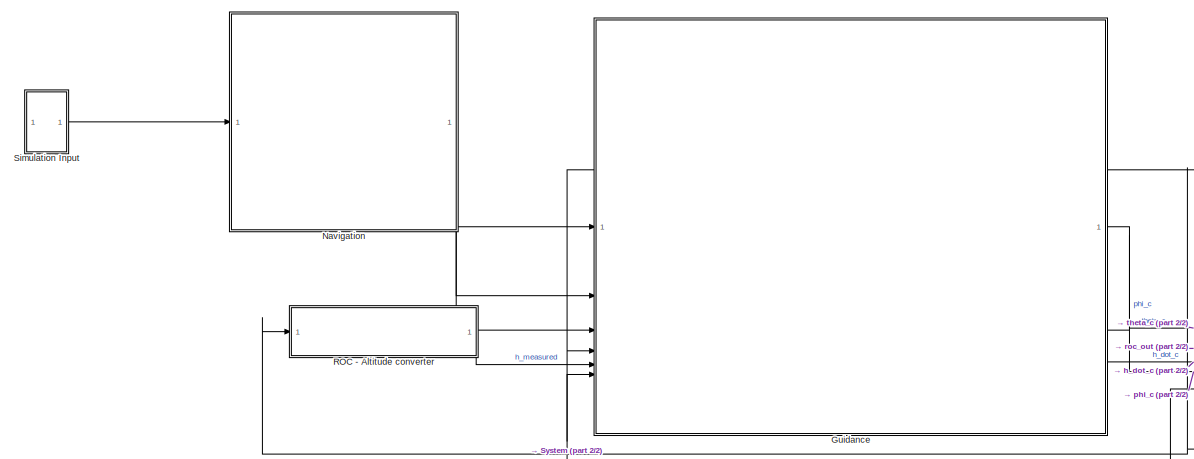
[diagram: root canvas - part 1/2, middle left region]
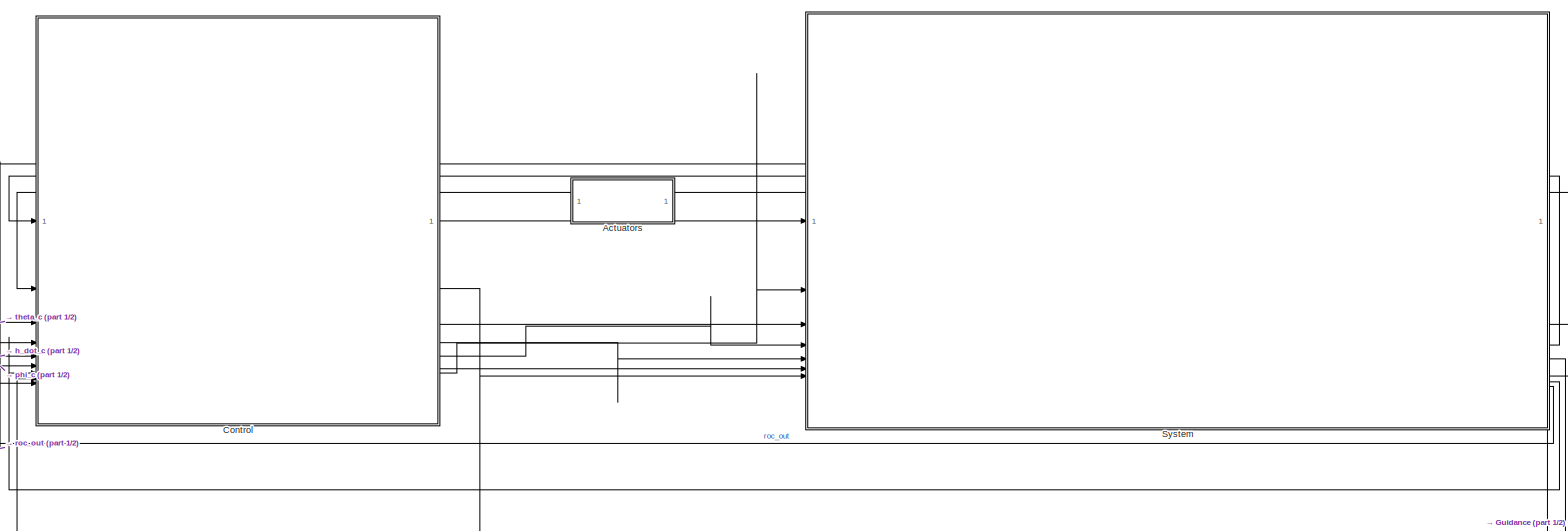
[diagram: root canvas - part 2/2, right side, full height]
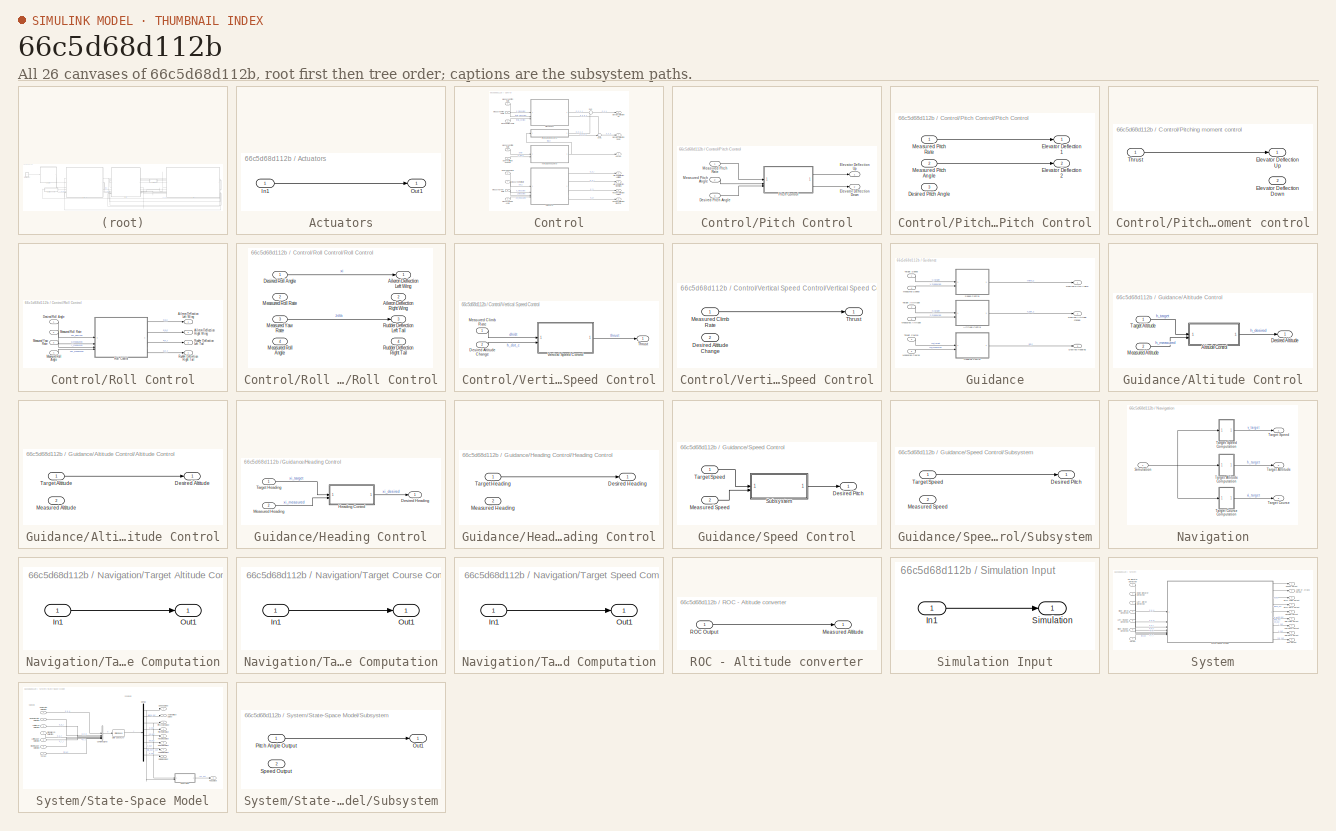
[diagram: thumbnail index - all 26 canvases of the model, root first then tree order]
MODEL slx_66c5d68d112b
KIND model
CONFIG AbsTol = auto
CONFIG EnableMultiTasking = off
CONFIG FixedStep = auto
CONFIG MaxStep = auto
CONFIG MinStep = auto
CONFIG RelTol = 1e-3
CONFIG SampleTimeConstraint = Unconstrained
CONFIG SolverName = VariableStepAuto
CONFIG StartTime = 0.0
CONFIG StopTime = 10.0
BLOCK [SubSystem] Actuators
BLOCK [Inport] Actuators/In1
BLOCK [Outport] Actuators/Out1
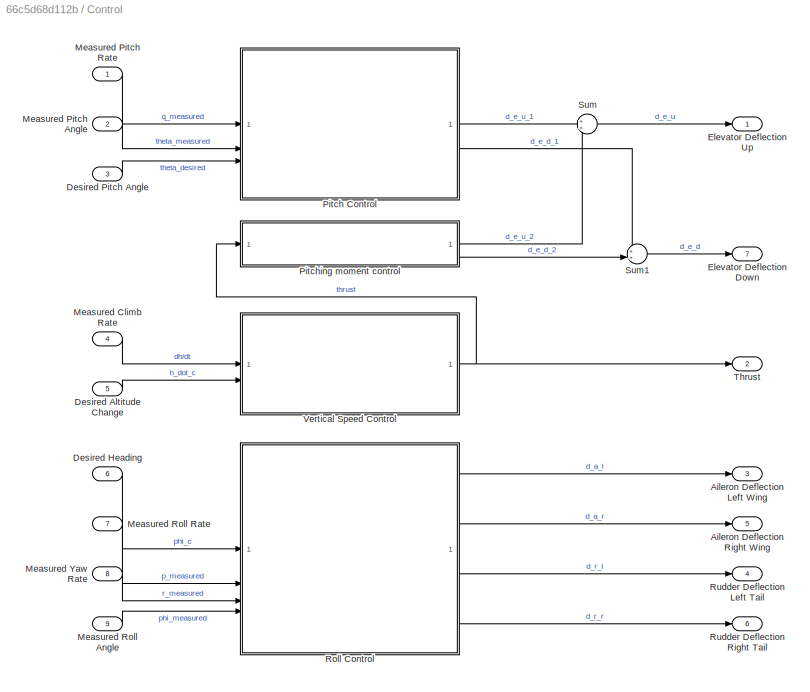
BLOCK [SubSystem] Control
BLOCK [Outport] Control/Aileron Deflection Left Wing
  Port = 3
BLOCK [Outport] Control/Aileron Deflection Right Wing
  Port = 5
BLOCK [Inport] Control/Desired Altitude Change
  Port = 5
BLOCK [Inport] Control/Desired Heading
  Port = 6
BLOCK [Inport] Control/Desired Pitch Angle
  Port = 3
BLOCK [Outport] Control/Elevator Deflection Down
  Port = 7
BLOCK [Outport] Control/Elevator Deflection Up
BLOCK [Inport] Control/Measured Climb Rate
  Port = 4
BLOCK [Inport] Control/Measured Pitch Angle
  Port = 2
BLOCK [Inport] Control/Measured Pitch Rate
BLOCK [Inport] Control/Measured Roll Angle
  Port = 9
BLOCK [Inport] Control/Measured Roll Rate
  Port = 7
BLOCK [Inport] Control/Measured Yaw Rate
  Port = 8
BLOCK [SubSystem] Control/Pitch Control
BLOCK [Inport] Control/Pitch Control/Desired Pitch Angle
  Port = 3
BLOCK [Outport] Control/Pitch Control/Elevator Deflection Down
  Port = 2
BLOCK [Outport] Control/Pitch Control/Elevator Deflection Up
BLOCK [Inport] Control/Pitch Control/Measured Pitch Angle
  Port = 2
BLOCK [Inport] Control/Pitch Control/Measured Pitch Rate
BLOCK [SubSystem] Control/Pitch Control/Pitch Control
BLOCK [Inport] Control/Pitch Control/Pitch Control/Desired Pitch Angle
  Port = 3
BLOCK [Outport] Control/Pitch Control/Pitch Control/Elevator Deflection 1
BLOCK [Outport] Control/Pitch Control/Pitch Control/Elevator Deflection 2
  Port = 2
BLOCK [Inport] Control/Pitch Control/Pitch Control/Measured Pitch Angle
  Port = 2
BLOCK [Inport] Control/Pitch Control/Pitch Control/Measured Pitch Rate
BLOCK [SubSystem] Control/Pitching moment control
BLOCK [Outport] Control/Pitching moment control/Elevator Deflection Down
  Port = 2
BLOCK [Outport] Control/Pitching moment control/Elevator Deflection Up
BLOCK [Inport] Control/Pitching moment control/Thrust
BLOCK [SubSystem] Control/Roll Control
BLOCK [Outport] Control/Roll Control/Aileron Deflection Left Wing
BLOCK [Outport] Control/Roll Control/Aileron Deflection Right Wing
  Port = 2
BLOCK [Inport] Control/Roll Control/Desired Roll Angle 
BLOCK [Inport] Control/Roll Control/Measured Roll Angle
  Port = 4
BLOCK [Inport] Control/Roll Control/Measured Roll Rate
  Port = 2
BLOCK [Inport] Control/Roll Control/Measured Yaw Rate
  Port = 3
BLOCK [SubSystem] Control/Roll Control/Roll Control
BLOCK [Outport] Control/Roll Control/Roll Control/Aileron Deflection Left Wing
BLOCK [Outport] Control/Roll Control/Roll Control/Aileron Deflection Right Wing
  Port = 2
BLOCK [Inport] Control/Roll Control/Roll Control/Desired Roll Angle
BLOCK [Inport] Control/Roll Control/Roll Control/Measured Roll Angle
  Port = 4
BLOCK [Inport] Control/Roll Control/Roll Control/Measured Roll Rate
  Port = 2
BLOCK [Inport] Control/Roll Control/Roll Control/Measured Yaw Rate
  Port = 3
BLOCK [Outport] Control/Roll Control/Roll Control/Rudder Deflection Left Tail
  Port = 3
BLOCK [Outport] Control/Roll Control/Roll Control/Rudder Deflection Right Tail
  Port = 4
BLOCK [Outport] Control/Roll Control/Rudder Deflection Left Tail
  Port = 3
BLOCK [Outport] Control/Roll Control/Rudder Deflection Right Tail
  Port = 4
BLOCK [Outport] Control/Rudder Deflection Left Tail
  Port = 4
BLOCK [Outport] Control/Rudder Deflection Right Tail
  Port = 6
BLOCK [Sum] Control/Sum
BLOCK [Sum] Control/Sum1
  Inputs = ++|
BLOCK [Outport] Control/Thrust
  Port = 2
BLOCK [SubSystem] Control/Vertical Speed Control
BLOCK [Inport] Control/Vertical Speed Control/Desired Altitude Change
  Port = 2
BLOCK [Inport] Control/Vertical Speed Control/Measured Climb Rate
BLOCK [Outport] Control/Vertical Speed Control/Thrust
BLOCK [SubSystem] Control/Vertical Speed Control/Vertical Speed Control
BLOCK [Inport] Control/Vertical Speed Control/Vertical Speed Control/Desired Altitude Change
  Port = 2
BLOCK [Inport] Control/Vertical Speed Control/Vertical Speed Control/Measured Climb Rate
BLOCK [Outport] Control/Vertical Speed Control/Vertical Speed Control/Thrust
BLOCK [SubSystem] Guidance
BLOCK [SubSystem] Guidance/Altitude Control
BLOCK [SubSystem] Guidance/Altitude Control/Altitude Control
BLOCK [Outport] Guidance/Altitude Control/Altitude Control/Desired Altitude
BLOCK [Inport] Guidance/Altitude Control/Altitude Control/Measured Altitude
  Port = 2
BLOCK [Inport] Guidance/Altitude Control/Altitude Control/Target Altitude
BLOCK [Outport] Guidance/Altitude Control/Desired Altitude
BLOCK [Inport] Guidance/Altitude Control/Measured Altitude
  Port = 2
BLOCK [Inport] Guidance/Altitude Control/Target Altitude
BLOCK [Outport] Guidance/Desired Altitude change
  Port = 2
BLOCK [Outport] Guidance/Desired Heading
  Port = 3
BLOCK [Outport] Guidance/Desired Pitch Angle
BLOCK [SubSystem] Guidance/Heading Control
BLOCK [Outport] Guidance/Heading Control/Desired Heading
BLOCK [SubSystem] Guidance/Heading Control/Heading Control
BLOCK [Outport] Guidance/Heading Control/Heading Control/Desired Heading
BLOCK [Inport] Guidance/Heading Control/Heading Control/Measured Heading
  Port = 2
BLOCK [Inport] Guidance/Heading Control/Heading Control/Target Heading
BLOCK [Inport] Guidance/Heading Control/Measured Heading
  Port = 2
BLOCK [Inport] Guidance/Heading Control/Target Heading
BLOCK [Inport] Guidance/Measured Altitude
  Port = 5
BLOCK [Inport] Guidance/Measured Course
  Port = 6
BLOCK [Inport] Guidance/Measured Speed
  Port = 4
BLOCK [SubSystem] Guidance/Speed Control
BLOCK [Outport] Guidance/Speed Control/Desired Pitch
BLOCK [Inport] Guidance/Speed Control/Measured Speed
  Port = 2
BLOCK [SubSystem] Guidance/Speed Control/Subsystem
BLOCK [Outport] Guidance/Speed Control/Subsystem/Desired Pitch
BLOCK [Inport] Guidance/Speed Control/Subsystem/Measured Speed
  Port = 2
BLOCK [Inport] Guidance/Speed Control/Subsystem/Target Speed
BLOCK [Inport] Guidance/Speed Control/Target Speed
BLOCK [Inport] Guidance/Target Atltitude
  Port = 2
BLOCK [Inport] Guidance/Target Course
  Port = 3
BLOCK [Inport] Guidance/Target Speed
BLOCK [SubSystem] Navigation
BLOCK [Inport] Navigation/Simulation
BLOCK [SubSystem] Navigation/Target Altitude Computation
BLOCK [Inport] Navigation/Target Altitude Computation/In1
BLOCK [Outport] Navigation/Target Altitude Computation/Out1
BLOCK [Outport] Navigation/Target Atltitude
  Port = 2
BLOCK [Outport] Navigation/Target Course
  Port = 3
BLOCK [SubSystem] Navigation/Target Course Computation
BLOCK [Inport] Navigation/Target Course Computation/In1
BLOCK [Outport] Navigation/Target Course Computation/Out1
BLOCK [Outport] Navigation/Target Speed
BLOCK [SubSystem] Navigation/Target Speed Computation
BLOCK [Inport] Navigation/Target Speed Computation/In1
BLOCK [Outport] Navigation/Target Speed Computation/Out1
BLOCK [SubSystem] ROC - Altitude converter
BLOCK [Outport] ROC - Altitude converter/Measured Altitude
BLOCK [Inport] ROC - Altitude converter/ROC Output
BLOCK [SubSystem] Simulation Input
BLOCK [Inport] Simulation Input/In1
BLOCK [Outport] Simulation Input/Simulation
BLOCK [SubSystem] System
BLOCK [Outport] System/Angle of Attack Output
  Port = 2
BLOCK [Inport] System/Down Elevator Deflection
  Port = 2
BLOCK [Outport] System/Heading Output
  Port = 5
BLOCK [Inport] System/Left Aileron Deflection
  Port = 3
BLOCK [Inport] System/Left Rudder Deflection
  Port = 5
BLOCK [Outport] System/Pitch Angle Output
  Port = 3
BLOCK [Outport] System/Pitch Rate Output
  Port = 4
BLOCK [Outport] System/ROC Output
  Port = 9
BLOCK [Inport] System/Right Aileron Deflection
  Port = 4
BLOCK [Inport] System/Right Rudder Deflection
  Port = 6
BLOCK [Outport] System/Roll Angle Output
  Port = 6
BLOCK [Outport] System/Roll Rate Output
  Port = 8
BLOCK [Outport] System/Speed Output
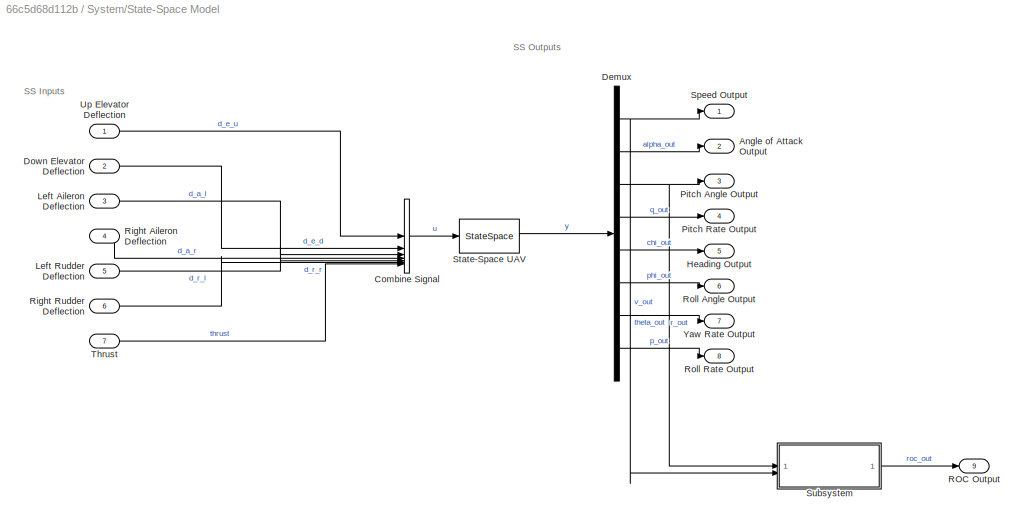
BLOCK [SubSystem] System/State-Space Model
BLOCK [Outport] System/State-Space Model/Angle of Attack Output
  Port = 2
BLOCK [Concatenate] System/State-Space Model/Combine Signal
  NumInputs = 7
BLOCK [Demux] System/State-Space Model/Demux
  Outputs = 8
BLOCK [Inport] System/State-Space Model/Down Elevator Deflection
  Port = 2
BLOCK [Outport] System/State-Space Model/Heading Output
  Port = 5
BLOCK [Inport] System/State-Space Model/Left Aileron Deflection
  Port = 3
BLOCK [Inport] System/State-Space Model/Left Rudder Deflection
  Port = 5
BLOCK [Outport] System/State-Space Model/Pitch Angle Output
  Port = 3
BLOCK [Outport] System/State-Space Model/Pitch Rate Output
  Port = 4
BLOCK [Outport] System/State-Space Model/ROC Output
  Port = 9
BLOCK [Inport] System/State-Space Model/Right Aileron Deflection
  Port = 4
BLOCK [Inport] System/State-Space Model/Right Rudder Deflection
  Port = 6
BLOCK [Outport] System/State-Space Model/Roll Angle Output
  Port = 6
BLOCK [Outport] System/State-Space Model/Roll Rate Output
  Port = 8
BLOCK [Outport] System/State-Space Model/Speed Output
BLOCK [StateSpace] System/State-Space Model/State-Space UAV
  InitialCondition = 0
BLOCK [SubSystem] System/State-Space Model/Subsystem
BLOCK [Outport] System/State-Space Model/Subsystem/Out1
BLOCK [Inport] System/State-Space Model/Subsystem/Pitch Angle Output
BLOCK [Inport] System/State-Space Model/Subsystem/Speed Output
  Port = 2
BLOCK [Inport] System/State-Space Model/Thrust
  Port = 7
BLOCK [Inport] System/State-Space Model/Up Elevator Deflection
BLOCK [Outport] System/State-Space Model/Yaw Rate Output
  Port = 7
BLOCK [Inport] System/Thrust
  Port = 7
BLOCK [Inport] System/Up Elevator Deflection
BLOCK [Outport] System/Yaw Rate Output
  Port = 7
ANNOTATION System/State-Space Model: SS Inputs
ANNOTATION System/State-Space Model: SS Outputs
LINE Actuators/In1:1 -> Actuators/Out1:1
LINE Control/Desired Altitude Change:1 -> Control/Vertical Speed Control:2
LINE Control/Desired Heading:1 -> Control/Roll Control:1
LINE Control/Desired Pitch Angle:1 -> Control/Pitch Control:3
LINE Control/Measured Climb Rate:1 -> Control/Vertical Speed Control:1
LINE Control/Measured Pitch Angle:1 -> Control/Pitch Control:2
LINE Control/Measured Pitch Rate:1 -> Control/Pitch Control:1
LINE Control/Measured Roll Angle:1 -> Control/Roll Control:4
LINE Control/Measured Roll Rate:1 -> Control/Roll Control:2
LINE Control/Measured Yaw Rate:1 -> Control/Roll Control:3
LINE Control/Pitch Control/Desired Pitch Angle:1 -> Control/Pitch Control/Pitch Control:3
LINE Control/Pitch Control/Measured Pitch Angle:1 -> Control/Pitch Control/Pitch Control:2
LINE Control/Pitch Control/Measured Pitch Rate:1 -> Control/Pitch Control/Pitch Control:1
LINE Control/Pitch Control/Pitch Control/Measured Pitch Angle:1 -> Control/Pitch Control/Pitch Control/Elevator Deflection 2:1
LINE Control/Pitch Control/Pitch Control/Measured Pitch Rate:1 -> Control/Pitch Control/Pitch Control/Elevator Deflection 1:1
LINE Control/Pitch Control/Pitch Control:1 -> Control/Pitch Control/Elevator Deflection Up:1
LINE Control/Pitch Control/Pitch Control:2 -> Control/Pitch Control/Elevator Deflection Down:1
LINE Control/Pitch Control:1 -> Control/Sum:1
LINE Control/Pitch Control:2 -> Control/Sum1:1
LINE Control/Pitching moment control/Thrust:1 -> Control/Pitching moment control/Elevator Deflection Up:1
LINE Control/Pitching moment control:1 -> Control/Sum:2
LINE Control/Pitching moment control:2 -> Control/Sum1:2
LINE Control/Roll Control/Desired Roll Angle :1 -> Control/Roll Control/Roll Control:1
LINE Control/Roll Control/Measured Roll Angle:1 -> Control/Roll Control/Roll Control:4
LINE Control/Roll Control/Measured Roll Rate:1 -> Control/Roll Control/Roll Control:2
LINE Control/Roll Control/Measured Yaw Rate:1 -> Control/Roll Control/Roll Control:3
LINE Control/Roll Control/Roll Control/Desired Roll Angle:1 -> Control/Roll Control/Roll Control/Aileron Deflection Left Wing:1
LINE Control/Roll Control/Roll Control/Measured Yaw Rate:1 -> Control/Roll Control/Roll Control/Rudder Deflection Left Tail:1
LINE Control/Roll Control/Roll Control:1 -> Control/Roll Control/Aileron Deflection Left Wing:1
LINE Control/Roll Control/Roll Control:2 -> Control/Roll Control/Aileron Deflection Right Wing:1
LINE Control/Roll Control/Roll Control:3 -> Control/Roll Control/Rudder Deflection Left Tail:1
LINE Control/Roll Control/Roll Control:4 -> Control/Roll Control/Rudder Deflection Right Tail:1
LINE Control/Roll Control:1 -> Control/Aileron Deflection Left Wing:1
LINE Control/Roll Control:2 -> Control/Aileron Deflection Right Wing:1
LINE Control/Roll Control:3 -> Control/Rudder Deflection Left Tail:1
LINE Control/Roll Control:4 -> Control/Rudder Deflection Right Tail:1
LINE Control/Sum1:1 -> Control/Elevator Deflection Down:1
LINE Control/Sum:1 -> Control/Elevator Deflection Up:1
LINE Control/Vertical Speed Control/Desired Altitude Change:1 -> Control/Vertical Speed Control/Vertical Speed Control:2
LINE Control/Vertical Speed Control/Measured Climb Rate:1 -> Control/Vertical Speed Control/Vertical Speed Control:1
LINE Control/Vertical Speed Control/Vertical Speed Control/Measured Climb Rate:1 -> Control/Vertical Speed Control/Vertical Speed Control/Thrust:1
LINE Control/Vertical Speed Control/Vertical Speed Control:1 -> Control/Vertical Speed Control/Thrust:1
NET Control/Vertical Speed Control:1 -> Control/Pitching moment control:1, Control/Thrust:1
LINE Control:1 -> System:1
LINE Control:2 -> System:7
LINE Control:3 -> System:3
LINE Control:4 -> System:5
LINE Control:5 -> System:4
LINE Control:6 -> System:6
LINE Control:7 -> System:2
LINE Guidance/Altitude Control/Altitude Control/Target Altitude:1 -> Guidance/Altitude Control/Altitude Control/Desired Altitude:1
LINE Guidance/Altitude Control/Altitude Control:1 -> Guidance/Altitude Control/Desired Altitude:1
LINE Guidance/Altitude Control/Measured Altitude:1 -> Guidance/Altitude Control/Altitude Control:2
LINE Guidance/Altitude Control/Target Altitude:1 -> Guidance/Altitude Control/Altitude Control:1
LINE Guidance/Altitude Control:1 -> Guidance/Desired Altitude change:1
LINE Guidance/Heading Control/Heading Control/Target Heading:1 -> Guidance/Heading Control/Heading Control/Desired Heading:1
LINE Guidance/Heading Control/Heading Control:1 -> Guidance/Heading Control/Desired Heading:1
LINE Guidance/Heading Control/Measured Heading:1 -> Guidance/Heading Control/Heading Control:2
LINE Guidance/Heading Control/Target Heading:1 -> Guidance/Heading Control/Heading Control:1
LINE Guidance/Heading Control:1 -> Guidance/Desired Heading:1
LINE Guidance/Measured Altitude:1 -> Guidance/Altitude Control:2
LINE Guidance/Measured Course:1 -> Guidance/Heading Control:2
LINE Guidance/Measured Speed:1 -> Guidance/Speed Control:2
LINE Guidance/Speed Control/Measured Speed:1 -> Guidance/Speed Control/Subsystem:2
LINE Guidance/Speed Control/Subsystem/Target Speed:1 -> Guidance/Speed Control/Subsystem/Desired Pitch:1
LINE Guidance/Speed Control/Subsystem:1 -> Guidance/Speed Control/Desired Pitch:1
LINE Guidance/Speed Control/Target Speed:1 -> Guidance/Speed Control/Subsystem:1
LINE Guidance/Speed Control:1 -> Guidance/Desired Pitch Angle:1
LINE Guidance/Target Atltitude:1 -> Guidance/Altitude Control:1
LINE Guidance/Target Course:1 -> Guidance/Heading Control:1
LINE Guidance/Target Speed:1 -> Guidance/Speed Control:1
LINE Guidance:1 -> Control:3
LINE Guidance:2 -> Control:5
LINE Guidance:3 -> Control:6
NET Navigation/Simulation:1 -> Navigation/Target Altitude Computation:1, Navigation/Target Course Computation:1, Navigation/Target Speed Computation:1
LINE Navigation/Target Altitude Computation/In1:1 -> Navigation/Target Altitude Computation/Out1:1
LINE Navigation/Target Altitude Computation:1 -> Navigation/Target Atltitude:1
LINE Navigation/Target Course Computation/In1:1 -> Navigation/Target Course Computation/Out1:1
LINE Navigation/Target Course Computation:1 -> Navigation/Target Course:1
LINE Navigation/Target Speed Computation/In1:1 -> Navigation/Target Speed Computation/Out1:1
LINE Navigation/Target Speed Computation:1 -> Navigation/Target Speed:1
LINE Navigation:1 -> Guidance:1
LINE Navigation:2 -> Guidance:2
LINE Navigation:3 -> Guidance:3
LINE ROC - Altitude converter/ROC Output:1 -> ROC - Altitude converter/Measured Altitude:1
LINE ROC - Altitude converter:1 -> Guidance:5
LINE Simulation Input/In1:1 -> Simulation Input/Simulation:1
LINE Simulation Input:1 -> Navigation:1
LINE System/Down Elevator Deflection:1 -> System/State-Space Model:2
LINE System/Left Aileron Deflection:1 -> System/State-Space Model:3
LINE System/Left Rudder Deflection:1 -> System/State-Space Model:5
LINE System/Right Aileron Deflection:1 -> System/State-Space Model:4
LINE System/Right Rudder Deflection:1 -> System/State-Space Model:6
LINE System/State-Space Model/Combine Signal:1 -> System/State-Space Model/State-Space UAV:1
NET System/State-Space Model/Demux:1 -> System/State-Space Model/Speed Output:1, System/State-Space Model/Subsystem:2
LINE System/State-Space Model/Demux:2 -> System/State-Space Model/Angle of Attack Output:1
NET System/State-Space Model/Demux:3 -> System/State-Space Model/Pitch Angle Output:1, System/State-Space Model/Subsystem:1
LINE System/State-Space Model/Demux:4 -> System/State-Space Model/Pitch Rate Output:1
LINE System/State-Space Model/Demux:5 -> System/State-Space Model/Heading Output:1
LINE System/State-Space Model/Demux:6 -> System/State-Space Model/Roll Angle Output:1
LINE System/State-Space Model/Demux:7 -> System/State-Space Model/Yaw Rate Output:1
LINE System/State-Space Model/Demux:8 -> System/State-Space Model/Roll Rate Output:1
LINE System/State-Space Model/Down Elevator Deflection:1 -> System/State-Space Model/Combine Signal:2
LINE System/State-Space Model/Left Aileron Deflection:1 -> System/State-Space Model/Combine Signal:3
LINE System/State-Space Model/Left Rudder Deflection:1 -> System/State-Space Model/Combine Signal:5
LINE System/State-Space Model/Right Aileron Deflection:1 -> System/State-Space Model/Combine Signal:4
LINE System/State-Space Model/Right Rudder Deflection:1 -> System/State-Space Model/Combine Signal:6
LINE System/State-Space Model/State-Space UAV:1 -> System/State-Space Model/Demux:1
LINE System/State-Space Model/Subsystem/Pitch Angle Output:1 -> System/State-Space Model/Subsystem/Out1:1
LINE System/State-Space Model/Subsystem:1 -> System/State-Space Model/ROC Output:1
LINE System/State-Space Model/Thrust:1 -> System/State-Space Model/Combine Signal:7
LINE System/State-Space Model/Up Elevator Deflection:1 -> System/State-Space Model/Combine Signal:1
LINE System/State-Space Model:1 -> System/Speed Output:1
LINE System/State-Space Model:2 -> System/Angle of Attack Output:1
LINE System/State-Space Model:3 -> System/Pitch Angle Output:1
LINE System/State-Space Model:4 -> System/Pitch Rate Output:1
LINE System/State-Space Model:5 -> System/Heading Output:1
LINE System/State-Space Model:6 -> System/Roll Angle Output:1
LINE System/State-Space Model:7 -> System/Yaw Rate Output:1
LINE System/State-Space Model:8 -> System/Roll Rate Output:1
LINE System/State-Space Model:9 -> System/ROC Output:1
LINE System/Thrust:1 -> System/State-Space Model:7
LINE System/Up Elevator Deflection:1 -> System/State-Space Model:1
LINE System:1 -> Guidance:4
LINE System:3 -> Control:2
LINE System:4 -> Control:1
LINE System:5 -> Guidance:6
LINE System:6 -> Control:9
LINE System:7 -> Control:8
LINE System:8 -> Control:7
NET System:9 -> Control:4, ROC - Altitude converter:1
note: NET lines group one-source signal fan-out (src -> all destinations, sorted); 1:1 wires keep LINE
